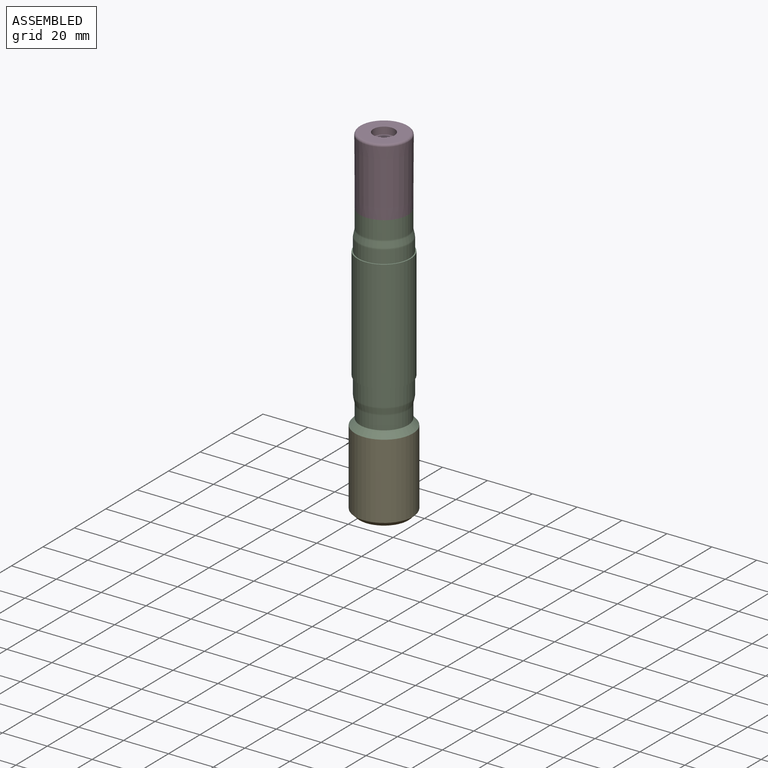
[diagram: assembled view]
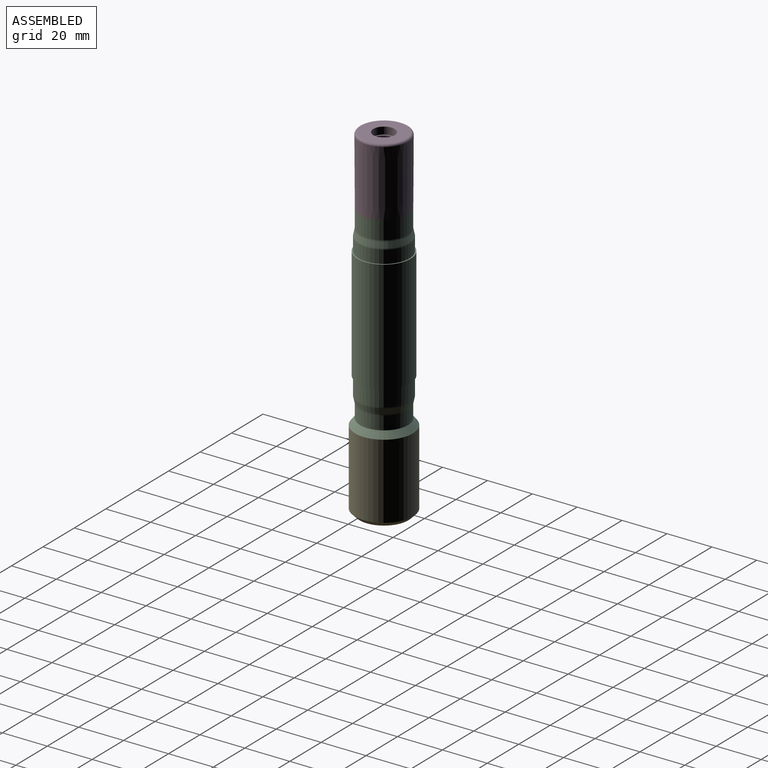
[diagram: assembled view, second angle]
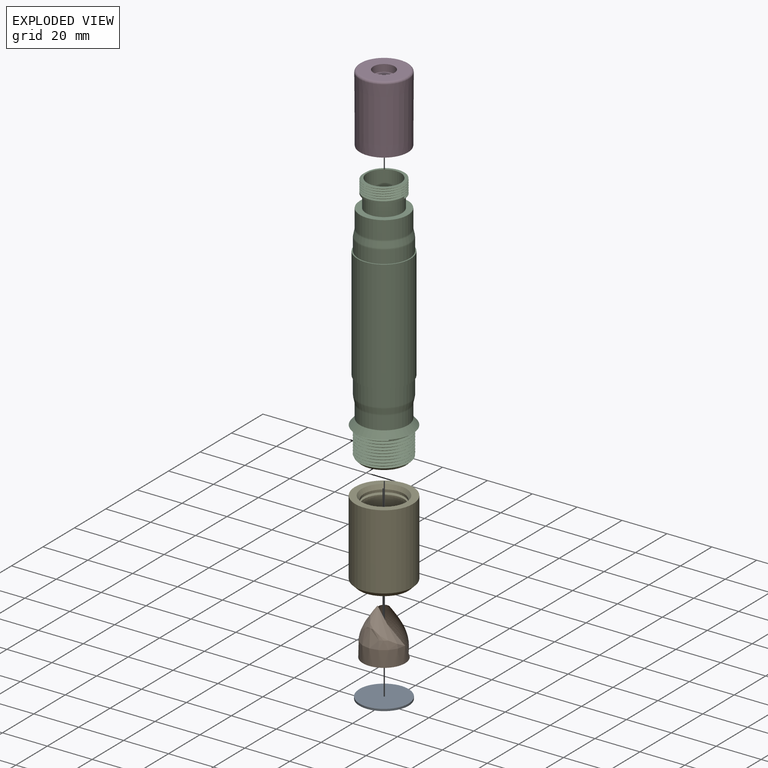
[diagram: exploded view]
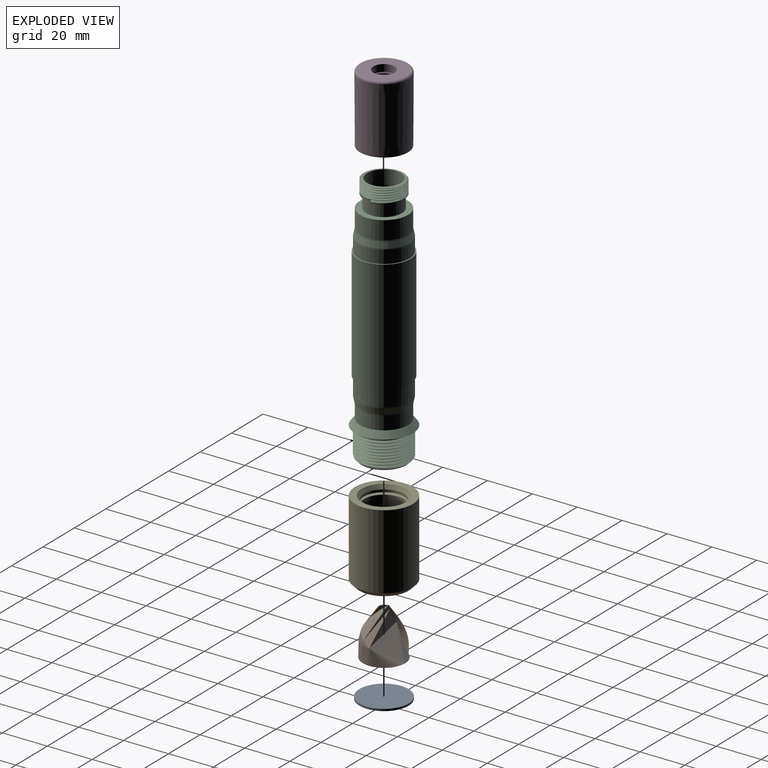
[diagram: exploded view, second angle]
ASSEMBLY  parts=5 mates=4
PART A: 3 faces, bbox 21.9x21.9x0.9 mm
  f0: cylinder r=10.95mm len=21.9mm, axis (0,0,-1), area 61.9mm2, adj f1,f2
  f1: plane 21.9x21.9mm, normal (0,0,1), area 376.7mm2, adj f0
  f2: plane 21.9x21.9mm, normal (0,0,-1), area 376.7mm2, adj f0
PART B: 4 faces, bbox 133.4x105.1x98.2 mm
  f0: plane 97.06x97.06mm, normal (0,0,-1), area 28.7mm2, adj f2,f3
  f1: plane 26.93x26.93mm, normal (0,0,1), area 9.9mm2, adj f2,f3
  f2: offset ~55.58x26.95mm, area 1745.2mm2, adj f0,f1
  f3: bspline ~20x19.21mm, area 961.4mm2, adj f0,f1
PART C: 42 faces, bbox 25.8x26.3x113.7 mm
  f0: cylinder r=11.35mm len=22.7mm, axis (0,0,1), area 550.1mm2, adj f9,f39
  f1: cylinder r=11.35mm len=22.7mm, axis (0,0,1), area 407.5mm2, adj f10,f41
  f2: plane 19.8x19.8mm, normal (0,0,-1), area 293.8mm2, adj f27,f29,f35
  f3: cylinder r=11.4mm len=22.8mm, axis (0,0,1), area 114.1mm2, adj f4,f34,f36,f37,f38
  f4: plane 25.8x25.8mm, normal (0,0,-1), area 114.5mm2, adj f3,f5
  f5: cone r=12.9mm half-angle=38.7deg, axis (0,0,-1), area 261.1mm2, adj f4,f6
  f6: cylinder r=10.7mm len=21.4mm, axis (0,0,1), area 398mm2, adj f5,f7
  f7: torus R=13.7mm, axis (0,0,1), area 43.1mm2, adj f6,f8
  f8: cone r=10.77mm half-angle=12.2deg, axis (0,0,1), area 168.1mm2, adj f7,f9
  f9: torus R=8.35mm, axis (0,0,1), area 45.6mm2, adj f0,f8
  f10: torus R=8.35mm, axis (0,0,1), area 45.6mm2, adj f1,f11
  f11: cone r=11.28mm half-angle=12.2deg, axis (0,0,-1), area 168.1mm2, adj f10,f12
  f12: torus R=13.7mm, axis (0,0,1), area 43.1mm2, adj f11,f13
  f13: cylinder r=10.7mm len=21.4mm, axis (0,0,1), area 537.8mm2, adj f12,f14
  f14: plane 21.4x21.4mm, normal (0,0,1), area 158.6mm2, adj f13,f15
  f15: cylinder r=8mm len=16mm, axis (0,0,1), area 298.1mm2, adj f14,f16
  f16: plane 18x18mm, normal (0,0,-1), area 53.4mm2, adj f15,f17
  f17: cylinder r=9mm len=18mm, axis (0,0,1), area 31.1mm2, adj f16,f18,f31,f32,f33
  f18: cylinder r=9mm len=18mm, axis (0,0,1), area 2.8mm2, adj f17,f19,f31,f32
  f19: cylinder r=9mm len=18mm, axis (0,0,1), area 2.8mm2, adj f18,f20,f31,f32
  f20: cylinder r=9mm len=18mm, axis (0,0,1), area 2.8mm2, adj f19,f21,f31,f32
  f21: cylinder r=9mm len=18mm, axis (0,0,1), area 2.8mm2, adj f20,f22,f31,f32
  f22: cylinder r=9mm len=18mm, axis (0,0,1), area 2.9mm2, adj f21,f30,f31,f32
  f23: plane 17.24x17.21mm, normal (0,0,1), area 55.7mm2, adj f24,f30,f31,f32
  f24: cylinder r=7.5mm len=98mm, axis (0,0,1), area 4476.9mm2, adj f23,f25,f26,f27,f28,f29
  f25: plane 15x14.73mm, normal (0,0,1), area 166.4mm2, adj f24,f27,f29
  f26: plane 2.77x0.92mm, normal (0,0,-1), area 1.6mm2, adj f24,f27
  f27: cylinder r=1.5mm len=39.7mm, axis (0,0,-1), area 228.6mm2, adj f2,f24,f25,f26
  f28: plane 2.91x1.14mm, normal (0,0,-1), area 2.2mm2, adj f24,f29
  f29: cylinder r=1.5mm len=39.7mm, axis (0,0,-1), area 240mm2, adj f2,f24,f25,f28
  f30: cone r=8.9mm half-angle=45deg, axis (0,0,-1), area 0.9mm2, adj f22,f23,f31,f32
  f31: bspline ~20.78x18mm, area 297.5mm2, adj f17,f18,f19,f20,f21,f22,f23,f30
  f32: bspline ~20.78x18.02mm, area 273mm2, adj f17,f18,f19,f20,f21,f22,f23,f30
  f33: plane 0.95x0.82mm, normal (0,1,0.02), area 0.4mm2, adj f17,f31,f32
  f34: cone r=11.4mm half-angle=45deg, axis (0,0,1), area 14mm2, adj f3,f35,f37,f38
  f35: cone r=11.4mm half-angle=45deg, axis (0,0,1), area 79mm2, adj f2,f34,f37
  f36: plane 1.2x0.76mm, normal (-0.72,-0.69,-0.02), area 0.6mm2, adj f3,f37,f38
  f37: bspline ~26.33x22.82mm, area 768mm2, adj f3,f34,f35,f36,f38
  f38: bspline ~26.33x22.8mm, area 807.6mm2, adj f3,f34,f36,f37
  f39: plane 23.7x23.7mm, normal (0,0,-1), area 36.4mm2, adj f0,f40
  f40: cylinder r=11.85mm len=50mm, axis (0,0,1), area 3722.8mm2, adj f39,f41
  f41: plane 23.7x23.7mm, normal (0,0,1), area 36.4mm2, adj f1,f40
PART D: 24 faces, bbox 23.5x24.5x31.8 mm
  f0: plane 19.72x19.72mm, normal (0,0,-1), area 234.4mm2, adj f1,f19
  f1: torus R=9.86mm, axis (0,0,1), area 103.9mm2, adj f0,f2
  f2: cone r=10.7mm half-angle=0.3deg, axis (0,0,-1), area 1997.5mm2, adj f1,f3
  f3: cone r=8.9mm half-angle=89.7deg, axis (0,0,1), area 43mm2, adj f2,f20,f22,f23
  f4: cone r=9.05mm half-angle=0.3deg, axis (0,0,-1), area 0.6mm2, adj f5,f20,f22,f23
  f5: cone r=9.05mm half-angle=0.3deg, axis (0,0,-1), area 3.6mm2, adj f4,f6,f22,f23
  f6: cone r=9.05mm half-angle=0.3deg, axis (0,0,-1), area 4.3mm2, adj f5,f7,f22,f23
  f7: cone r=9.05mm half-angle=0.3deg, axis (0,0,-1), area 5mm2, adj f6,f8,f22,f23
  f8: cone r=9.05mm half-angle=0.3deg, axis (0,0,-1), area 5.7mm2, adj f7,f9,f22,f23
  f9: cone r=9.05mm half-angle=0.3deg, axis (0,0,-1), area 6.4mm2, adj f8,f10,f22,f23
  f10: cone r=9.05mm half-angle=0.3deg, axis (0,0,-1), area 7.1mm2, adj f9,f11,f22,f23
  f11: cone r=9.05mm half-angle=0.3deg, axis (0,0,-1), area 7.9mm2, adj f10,f12,f22,f23
  f12: cone r=9.05mm half-angle=0.3deg, axis (0,0,-1), area 8.6mm2, adj f11,f13,f22,f23
  f13: cone r=9.05mm half-angle=0.3deg, axis (0,0,-1), area 9.3mm2, adj f12,f14,f22,f23
  f14: cone r=9.05mm half-angle=0.3deg, axis (0,0,-1), area 10mm2, adj f13,f15,f22,f23
  f15: cone r=9.05mm half-angle=0.3deg, axis (0,0,-1), area 10.7mm2, adj f14,f16,f22,f23
  f16: cone r=9.05mm half-angle=0.3deg, axis (0,0,-1), area 11.4mm2, adj f15,f17,f22,f23
  f17: cone r=9.05mm half-angle=0.3deg, axis (0,0,-1), area 61.5mm2, adj f16,f18,f21,f23
  f18: plane 18.09x18.09mm, normal (0,0,1), area 186.2mm2, adj f17,f19
  f19: cylinder r=4.75mm len=9.5mm, axis (0,0,1), area 94.5mm2, adj f0,f18
  f20: cone r=8.9mm half-angle=44.7deg, axis (0,0,1), area 26.7mm2, adj f3,f4,f22,f23
  f21: plane 1.79x1.55mm, normal (0,1,0), area 1.4mm2, adj f17,f22,f23
  f22: bspline ~27.64x24.45mm, area 1480.8mm2, adj f3,f4,f5,f6,f7,f8,f9,f10
  f23: bspline ~27.98x24.45mm, area 1520mm2, adj f3,f4,f5,f6,f7,f8,f9,f10
PART E: 31 faces, bbox 25.8x26x35.5 mm
  f0: plane 20.4x20.4mm, normal (0,0,-1), area 75.4mm2, adj f16,f25
  f1: cylinder r=10.2mm len=20.4mm, axis (0,0,1), area 40.1mm2, adj f2,f17,f27,f29,f30
  f2: cylinder r=10.2mm len=20.4mm, axis (0,0,1), area 3.2mm2, adj f1,f3,f29,f30
  f3: cylinder r=10.2mm len=20.4mm, axis (0,0,1), area 3.2mm2, adj f2,f4,f29,f30
  f4: cylinder r=10.2mm len=20.4mm, axis (0,0,1), area 3.2mm2, adj f3,f5,f29,f30
  f5: cylinder r=10.2mm len=20.4mm, axis (0,0,1), area 3.2mm2, adj f4,f6,f29,f30
  f6: cylinder r=10.2mm len=20.4mm, axis (0,0,1), area 3.2mm2, adj f5,f7,f29,f30
  f7: cylinder r=10.2mm len=20.4mm, axis (0,0,1), area 3.2mm2, adj f6,f8,f29,f30
  f8: cylinder r=10.2mm len=20.4mm, axis (0,0,1), area 3.2mm2, adj f7,f9,f29,f30
  f9: cylinder r=10.2mm len=20.4mm, axis (0,0,1), area 3.2mm2, adj f8,f10,f29,f30
  f10: cylinder r=10.2mm len=20.4mm, axis (0,0,1), area 3.2mm2, adj f9,f11,f29,f30
  f11: cylinder r=10.2mm len=20.4mm, axis (0,0,1), area 3.2mm2, adj f10,f12,f29,f30
  f12: cylinder r=10.2mm len=20.4mm, axis (0,0,1), area 3.2mm2, adj f11,f13,f29,f30
  f13: cylinder r=10.2mm len=20.4mm, axis (0,0,1), area 3.2mm2, adj f12,f14,f29,f30
  f14: cylinder r=10.2mm len=20.4mm, axis (0,0,1), area 3.2mm2, adj f13,f15,f29,f30
  f15: cylinder r=10.2mm len=20.4mm, axis (0,0,1), area 3.2mm2, adj f14,f16,f29,f30
  f16: cylinder r=10.2mm len=20.4mm, axis (0,0,1), area 673.3mm2, adj f0,f15,f28,f29
  f17: plane 21.8x21.8mm, normal (0,0,-1), area 46.4mm2, adj f1,f26
  f18: cylinder r=12.9mm len=33.5mm, axis (0,0,1), area 2715.3mm2, adj f19,f26
  f19: plane 25.8x25.8mm, normal (0,0,1), area 209.9mm2, adj f18,f20
  f20: cone r=9.98mm half-angle=30.4deg, axis (0,0,1), area 121.3mm2, adj f19,f21
  f21: cylinder r=8.95mm len=17.89mm, axis (0,0,1), area 62.3mm2, adj f20,f22
  f22: plane 22x22mm, normal (0,0,-1), area 128.7mm2, adj f21,f23
  f23: cylinder r=11mm len=22mm, axis (0,0,1), area 69.1mm2, adj f22,f24
  f24: plane 22x22mm, normal (0,0,1), area 128.7mm2, adj f23,f25
  f25: cylinder r=8.95mm len=17.89mm, axis (0,0,1), area 101.3mm2, adj f0,f24
  f26: cone r=12.9mm half-angle=45deg, axis (0,0,1), area 211.5mm2, adj f17,f18
  f27: plane 1.2x1.04mm, normal (0,1,0.02), area 0.6mm2, adj f1,f29,f30
  f28: plane 1.2x1.04mm, normal (0,-1,-0.02), area 0.6mm2, adj f16,f29,f30
  f29: bspline ~25.96x22.49mm, area 1209.4mm2, adj f1,f2,f3,f4,f5,f6,f7,f8
  f30: bspline ~25.96x22.49mm, area 1212.5mm2, adj f1,f2,f3,f4,f5,f6,f7,f8
PLACE A t=(0,0,-54.52)mm
PLACE B t=(0,0,-53.62)mm
PLACE C at identity fixed
PLACE D rot(axis=(1,0,0),180deg) t=(0,0,86.12)mm
PLACE E t=(0,0,-45.06)mm
MATE fastened E.f1 <-> C.f0  axis (0,0,1) through (0,0,-20.03)mm
MATE fastened C.f0 <-> B.f1  axis (0,0,-1) through (0,0,-33.62)mm
MATE fastened C.f0 <-> D.f1  axis (0,0,1) through (0,0,67.36)mm
MATE fastened A.f0 <-> B.f0  axis (0,0,1) through (0,0,-53.62)mm
